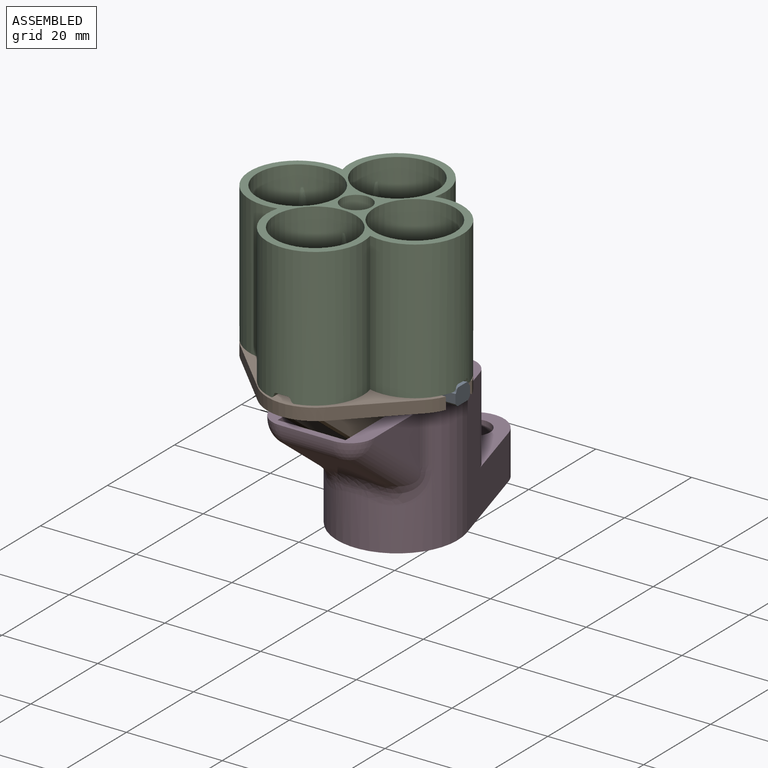
[diagram: assembled view]
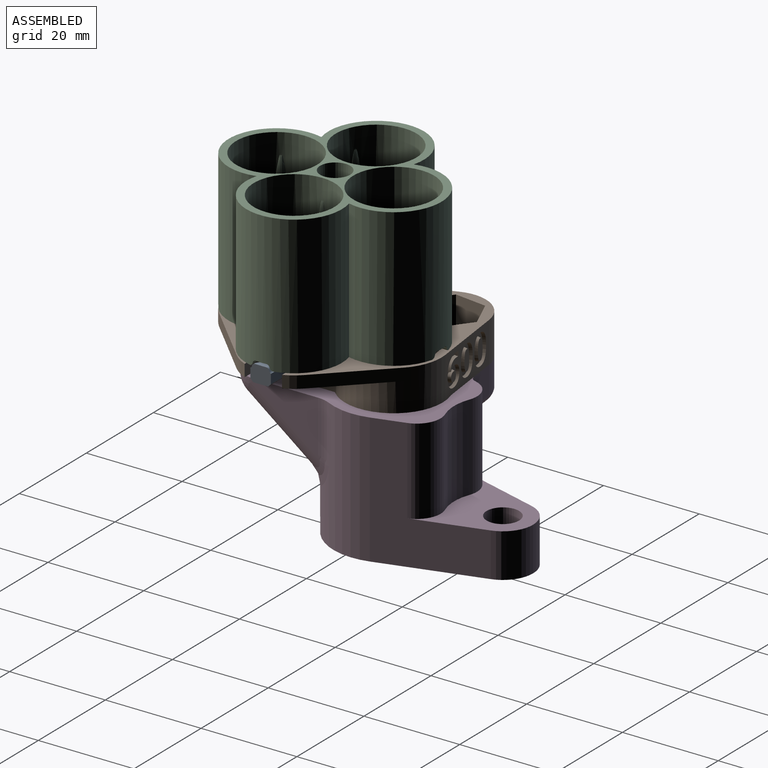
[diagram: assembled view, second angle]
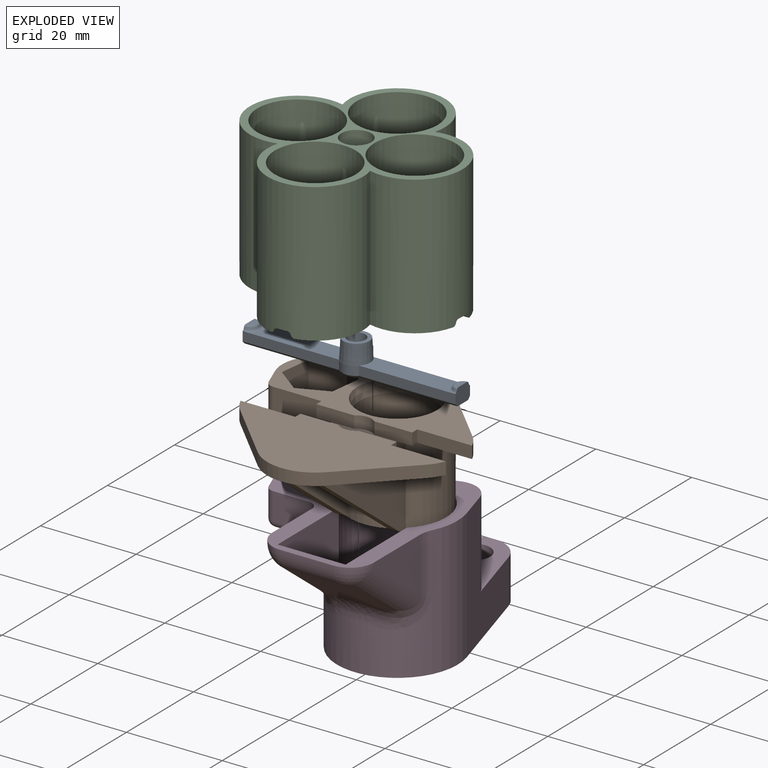
[diagram: exploded view]
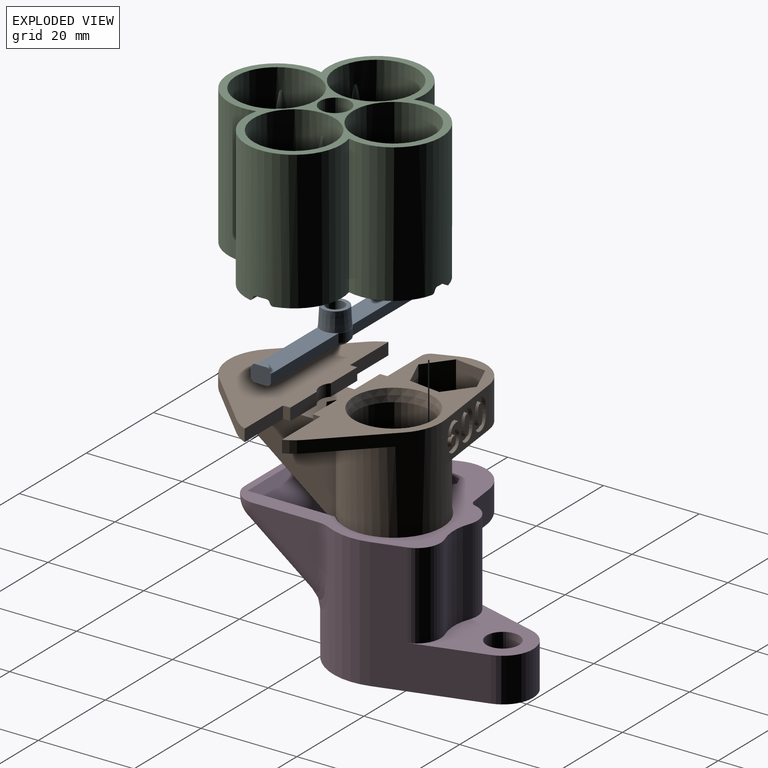
[diagram: exploded view, second angle]
ASSEMBLY  parts=4 mates=3
PART A: 27 faces, bbox 44.5x6x6.5 mm
  f0: plane 42.64x6mm, normal (0,0,1), area 152.1mm2, adj f1,f2,f3,f5,f6,f7,f10,f19
  f1: plane 20.14x1.98mm, normal (0,1,0), area 39.1mm2, adj f0,f2,f8,f19,f24
  f2: cylinder r=3mm len=4.18mm, axis (0,0,-1), area 9mm2, adj f0,f1,f3,f25
  f3: plane 20.14x1.98mm, normal (0,1,0), area 39.1mm2, adj f0,f2,f4,f20,f26
  f4: plane 4.3x3.54mm, normal (-1,0,0), area 14.2mm2, adj f3,f5,f9,f12,f16,f17,f20,f21
  f5: plane 20.14x1.98mm, normal (0,-1,0), area 39.1mm2, adj f0,f4,f6,f20,f21
  f6: cylinder r=3mm len=4.18mm, axis (0,0,-1), area 9mm2, adj f0,f5,f7,f23
  f7: plane 20.14x1.98mm, normal (0,-1,0), area 39.1mm2, adj f0,f6,f8,f19,f22
  f8: plane 4.3x3.54mm, normal (1,0,0), area 14.2mm2, adj f1,f7,f9,f13,f15,f18,f19,f22
  f9: plane 44.47x4.8mm, normal (0,0,-1), area 130.8mm2, adj f4,f8,f14,f21,f22,f23,f24,f25
  f10: cone r=2.95mm half-angle=3deg, axis (0,0,-1), area 71.6mm2, adj f0,f11
  f11: plane 5.48x5.48mm, normal (0,0,1), area 12.3mm2, adj f10,f14
  f12: plane 2.52x1.26mm, normal (0,0,1), area 2.5mm2, adj f4,f17
  f13: plane 2.52x1.26mm, normal (0,0,1), area 2.5mm2, adj f8,f18
  f14: cylinder r=1.9mm len=6.54mm, axis (0,0,1), area 78.1mm2, adj f9,f11
  f15: cone r=1.62mm half-angle=20deg, axis (0,0,-1), area 2mm2, adj f8,f18,f19
  f16: cone r=1.62mm half-angle=20deg, axis (0,0,-1), area 2mm2, adj f4,f17,f20
  f17: torus R=1.26mm, axis (0,0,1), area 3mm2, adj f4,f12,f16
  f18: torus R=1.26mm, axis (0,0,1), area 3mm2, adj f8,f13,f15
  f19: torus R=2.34mm, axis (0,0,1), area 3.8mm2, adj f0,f1,f7,f8,f15
  f20: torus R=2.34mm, axis (0,0,1), area 3.8mm2, adj f0,f3,f4,f5,f16
  f21: plane 20.4x0.6mm, normal (0,-0.71,-0.71), area 17.2mm2, adj f4,f5,f9,f23
  f22: plane 20.4x0.6mm, normal (0,-0.71,-0.71), area 17.2mm2, adj f7,f8,f9,f23
  f23: cone r=3mm half-angle=45deg, axis (0,0,1), area 3.7mm2, adj f6,f9,f21,f22
  f24: plane 20.4x0.6mm, normal (0,0.71,-0.71), area 17.2mm2, adj f1,f8,f9,f25
  f25: cone r=3mm half-angle=45deg, axis (0,0,1), area 3.7mm2, adj f2,f9,f24,f26
  f26: plane 20.4x0.6mm, normal (0,0.71,-0.71), area 17.2mm2, adj f3,f4,f9,f25
PART B: 126 faces, bbox 45.9x44.8x20.3 mm
  f0: plane 16.17x8.81mm, normal (-0.12,0.99,0), area 70.4mm2, adj f8,f16,f22,f33,f68,f69,f70,f71
  f1: plane 17.13x14.58mm, normal (0,0,-1), area 125.5mm2, adj f3,f17,f29,f30,f32,f45,f51
  f2: plane 17.13x14.58mm, normal (0,0,-1), area 125.5mm2, adj f4,f26,f27,f28,f29,f42,f50
  f3: plane 2.54x1.52mm, normal (1,0,0), area 3.9mm2, adj f1,f5,f17,f51
  f4: plane 2.54x1.52mm, normal (-1,0,0), area 3.9mm2, adj f2,f5,f26,f50
  f5: plane 42.88x19.85mm, normal (0,0,1), area 509.4mm2, adj f3,f4,f17,f26,f27,f28,f29,f30
  f6: plane 22.73x17.4mm, normal (1,0,0), area 130.8mm2, adj f9,f11,f13,f14,f47
  f7: plane 20x20mm, normal (0,0,-1), area 127mm2, adj f8,f13,f31,f42,f45,f46,f47
  f8: cylinder r=10mm len=20mm, axis (0,0,-1), area 719.5mm2, adj f0,f7,f10,f16,f21,f33,f42,f45
  f9: plane 8.64x7.03mm, normal (0,0,-1), area 47mm2, adj f6,f13,f14,f43,f55,f56,f57,f58
  f10: plane 16.92x14.58mm, normal (0,0,-1), area 93.9mm2, adj f8,f18,f19,f20,f21,f45,f48
  f11: plane 18.42x13.7mm, normal (0,0,-1), area 161.2mm2, adj f6,f14,f29,f43,f46,f47
  f12: plane 3.14x1.52mm, normal (0,0,-1), area 4.8mm2, adj f24,f25,f42,f49
  f13: cylinder r=10mm len=8.64mm, axis (0,0,-1), area 70.2mm2, adj f6,f7,f9,f43
  f14: plane 9.54x8.64mm, normal (0,-1,0), area 82.4mm2, adj f6,f9,f11,f43
  f15: cylinder r=3.4mm len=6.8mm, axis (0,0,-1), area 53.2mm2, adj f16,f40
  f16: plane 22.82x18.25mm, normal (0,0,-1), area 199.2mm2, adj f0,f8,f15,f22,f23,f24,f42,f125
  f17: plane 11.44x2.54mm, normal (0,1,0), area 29.1mm2, adj f1,f3,f5,f32
  f18: plane 2.54x1.52mm, normal (1,0,0), area 3.9mm2, adj f10,f19,f33,f48
  f19: plane 11.44x2.54mm, normal (0,-1,0), area 29.1mm2, adj f10,f18,f20,f33
  f20: cylinder r=10mm len=3.17mm, axis (0,0,-1), area 9.8mm2, adj f10,f19,f21,f33
  f21: plane 12.23x12.23mm, normal (0.71,0.71,0), area 43.9mm2, adj f8,f10,f20,f33
  f22: cylinder r=8mm len=10.8mm, axis (0,0,-1), area 122.6mm2, adj f0,f16,f23,f33
  f23: plane 8.46x4.18mm, normal (-0.93,-0.36,0), area 37.9mm2, adj f16,f22,f33,f125
  f24: plane 13.21x8.46mm, normal (0,-1,0), area 103.7mm2, adj f12,f16,f25,f33,f42,f125
  f25: plane 2.54x1.52mm, normal (-1,0,0), area 3.9mm2, adj f12,f24,f33,f49
  f26: plane 11.44x2.54mm, normal (0,1,0), area 29.1mm2, adj f2,f4,f5,f27
  f27: cylinder r=10mm len=3.17mm, axis (0,0,-1), area 9.8mm2, adj f2,f5,f26,f28
  f28: plane 12.23x12.23mm, normal (-0.71,-0.71,0), area 43.9mm2, adj f2,f5,f27,f29
  f29: cylinder r=10mm len=14.14mm, axis (0,0,-1), area 39.9mm2, adj f1,f2,f5,f11,f28,f30,f41,f44
  f30: plane 12.23x12.23mm, normal (0.71,-0.71,0), area 43.9mm2, adj f1,f5,f29,f32
  f31: cylinder r=7.8mm len=17.44mm, axis (0,0,-1), area 854.7mm2, adj f7,f124
  f32: cylinder r=10mm len=3.17mm, axis (0,0,-1), area 9.8mm2, adj f1,f5,f17,f30
  f33: plane 45.51x19.85mm, normal (0,0,1), area 320.8mm2, adj f0,f8,f18,f19,f20,f21,f22,f23
  f34: plane 6.23x5.97mm, normal (0.39,-0.92,0), area 40.3mm2, adj f33,f35,f39,f40
  f35: plane 6.7x5.97mm, normal (0.99,-0.13,0), area 40.3mm2, adj f33,f34,f36,f40
  f36: plane 5.97x5.37mm, normal (0.61,0.8,0), area 40.3mm2, adj f33,f35,f37,f40
  f37: plane 6.23x5.97mm, normal (-0.39,0.92,0), area 40.3mm2, adj f33,f36,f38,f40
  f38: plane 6.7x5.97mm, normal (-0.99,0.13,0), area 40.3mm2, adj f33,f37,f39,f40
  f39: plane 5.97x5.37mm, normal (-0.61,-0.8,0), area 40.3mm2, adj f33,f34,f38,f40
  f40: plane 13.4x12.46mm, normal (0,0,1), area 82.2mm2, adj f15,f34,f35,f36,f37,f38,f39
  f41: plane 0.01x0.01mm, normal (0,0,1), area 0mm2, adj f29,f42,f47
  f42: plane 24.48x17.4mm, normal (-1,0,0), area 221.9mm2, adj f2,f7,f8,f12,f16,f24,f41,f47
  f43: plane 22.73x17.4mm, normal (-1,0,0), area 130.8mm2, adj f9,f11,f13,f14,f46
  f44: plane 0.01x0.01mm, normal (0,0,1), area 0mm2, adj f29,f45,f46
  f45: plane 24.48x17.4mm, normal (1,0,0), area 228.1mm2, adj f1,f7,f8,f10,f44,f46,f52
  f46: plane 22.73x17.4mm, normal (0,-0.61,-0.79), area 72.7mm2, adj f7,f11,f43,f44,f45
  f47: plane 22.73x17.4mm, normal (0,-0.61,-0.79), area 72.7mm2, adj f6,f7,f11,f41,f42
  f48: plane 7.9x2.54mm, normal (0,-1,0), area 20.1mm2, adj f10,f18,f33,f52,f53
  f49: plane 7.9x2.54mm, normal (0,-1,0), area 20.1mm2, adj f12,f25,f33,f52,f53
  f50: plane 7.9x2.54mm, normal (0,1,0), area 20.1mm2, adj f2,f4,f5,f52,f54
  f51: plane 7.9x2.54mm, normal (0,1,0), area 20.1mm2, adj f1,f3,f5,f52,f54
  f52: plane 13.72x6.35mm, normal (0,0,1), area 61.9mm2, adj f42,f45,f48,f49,f50,f51,f53,f54
  f53: cylinder r=3.17mm len=4.2mm, axis (0,0,1), area 11.7mm2, adj f33,f48,f49,f52
  f54: cylinder r=3.17mm len=4.2mm, axis (0,0,1), area 11.7mm2, adj f5,f50,f51,f52
  f55: plane 9.54x1.52mm, normal (-0.5,0.87,0), area 16.7mm2, adj f9,f52,f56,f60
  f56: plane 9.54x1.75mm, normal (-1,0,0), area 16.7mm2, adj f9,f52,f55,f57
  f57: plane 9.54x1.52mm, normal (-0.5,-0.87,0), area 16.7mm2, adj f9,f52,f56,f58
  f58: plane 9.54x1.52mm, normal (0.5,-0.87,0), area 16.7mm2, adj f9,f52,f57,f59
  f59: plane 9.54x1.75mm, normal (1,0,0), area 16.7mm2, adj f9,f52,f58,f60
  f60: plane 9.54x1.52mm, normal (0.5,0.87,0), area 16.7mm2, adj f9,f52,f55,f59
  f61: bspline ~1.69x0.75mm, area 1.1mm2, adj f62,f76,f77,f121
  f62: bspline ~1.7x0.75mm, area 1.1mm2, adj f61,f63,f77,f121
  f63: bspline ~0.93x0.83mm, area 0.6mm2, adj f62,f64,f77,f121
  f64: bspline ~0.85x0.83mm, area 0.6mm2, adj f63,f65,f77,f121
  f65: bspline ~1.7x0.8mm, area 1.1mm2, adj f64,f66,f77,f121
  f66: bspline ~1.69x0.79mm, area 1.1mm2, adj f65,f67,f77,f121
  f67: bspline ~0.85x0.84mm, area 0.6mm2, adj f66,f76,f77,f121
  f68: bspline ~2.38x0.74mm, area 1.6mm2, adj f0,f69,f75,f77
  f69: bspline ~2.36x0.8mm, area 1.6mm2, adj f0,f68,f70,f77
  f70: bspline ~1.68x0.9mm, area 1.2mm2, adj f0,f69,f71,f77
  f71: bspline ~1.61x0.87mm, area 1.2mm2, adj f0,f70,f72,f77
  f72: bspline ~2.4x0.83mm, area 1.6mm2, adj f0,f71,f73,f77
  f73: bspline ~2.36x0.72mm, area 1.6mm2, adj f0,f72,f74,f77
  f74: bspline ~1.59x0.94mm, area 1.2mm2, adj f0,f73,f75,f77
  f75: bspline ~1.69x0.87mm, area 1.2mm2, adj f0,f68,f74,f77
  f76: bspline ~0.93x0.83mm, area 0.6mm2, adj f61,f67,f77,f121
  f77: plane 6.37x4.31mm, normal (-0.12,0.99,0), area 11.9mm2, adj f61,f62,f63,f64,f65,f66,f67,f68
  f78: bspline ~1.69x0.75mm, area 1.1mm2, adj f79,f93,f94,f122
  f79: bspline ~1.7x0.75mm, area 1.1mm2, adj f78,f80,f94,f122
  f80: bspline ~0.93x0.83mm, area 0.6mm2, adj f79,f81,f94,f122
  f81: bspline ~0.85x0.83mm, area 0.6mm2, adj f80,f82,f94,f122
  f82: bspline ~1.7x0.8mm, area 1.1mm2, adj f81,f83,f94,f122
  f83: bspline ~1.69x0.79mm, area 1.1mm2, adj f82,f84,f94,f122
  f84: bspline ~0.85x0.84mm, area 0.6mm2, adj f83,f93,f94,f122
  f85: bspline ~2.38x0.79mm, area 1.6mm2, adj f0,f86,f92,f94
  f86: bspline ~2.36x0.8mm, area 1.6mm2, adj f0,f85,f87,f94
  f87: bspline ~1.68x0.9mm, area 1.2mm2, adj f0,f86,f88,f94
  f88: bspline ~1.61x0.87mm, area 1.2mm2, adj f0,f87,f89,f94
  f89: bspline ~2.4x0.83mm, area 1.6mm2, adj f0,f88,f90,f94
  f90: bspline ~2.36x0.83mm, area 1.6mm2, adj f0,f89,f91,f94
  f91: bspline ~1.59x0.89mm, area 1.2mm2, adj f0,f90,f92,f94
  f92: bspline ~1.69x0.87mm, area 1.2mm2, adj f0,f85,f91,f94
  f93: bspline ~0.93x0.83mm, area 0.6mm2, adj f78,f84,f94,f122
  f94: plane 6.37x4.31mm, normal (-0.12,0.99,0), area 11.9mm2, adj f78,f79,f80,f81,f82,f83,f84,f85
  f95: bspline ~0.84x0.79mm, area 0.5mm2, adj f96,f119,f120,f123
  f96: bspline ~0.91x0.83mm, area 0.6mm2, adj f95,f97,f120,f123
  f97: bspline ~0.97x0.76mm, area 0.6mm2, adj f96,f98,f120,f123
  f98: bspline ~0.76x0.75mm, area 0.5mm2, adj f97,f99,f120,f123
  f99: bspline ~0.9x0.83mm, area 0.5mm2, adj f98,f100,f120,f123
  f100: bspline ~0.84x0.78mm, area 0.5mm2, adj f99,f101,f120,f123
  f101: bspline ~0.84x0.8mm, area 0.5mm2, adj f100,f119,f120,f123
  f102: bspline ~2.72x0.81mm, area 1.9mm2, adj f0,f103,f118,f120
  f103: bspline ~1.46x0.8mm, area 1mm2, adj f0,f102,f104,f120
  f104: bspline ~1x0.86mm, area 0.8mm2, adj f0,f103,f105,f120
  f105: bspline ~1.18x0.89mm, area 0.8mm2, adj f0,f104,f106,f120
  f106: bspline ~1.61x0.81mm, area 1.1mm2, adj f0,f105,f107,f120
  f107: bspline ~1.56x0.79mm, area 1.1mm2, adj f0,f106,f108,f120
  f108: bspline ~1.43x0.78mm, area 1mm2, adj f0,f107,f109,f120
  f109: bspline ~1.37x0.89mm, area 0.9mm2, adj f0,f108,f110,f120
  f110: bspline ~1.38x0.92mm, area 1mm2, adj f0,f109,f111,f120
  f111: plane 0.67x0.35mm, normal (-0.03,0.26,-0.97), area 0.1mm2, adj f0,f110,f112,f120
  f112: bspline ~1.4x0.75mm, area 0.8mm2, adj f0,f111,f113,f120
  f113: bspline ~0.9x0.81mm, area 0.6mm2, adj f0,f112,f114,f120
  f114: bspline ~1.26x0.88mm, area 0.8mm2, adj f0,f113,f115,f120
  f115: bspline ~0.84x0.83mm, area 0.5mm2, adj f0,f114,f116,f120
  f116: plane 1.28x0.85mm, normal (0.93,0.38,0), area 0.6mm2, adj f0,f115,f117,f120
  f117: bspline ~0.91x0.84mm, area 0.5mm2, adj f0,f116,f118,f120
  f118: bspline ~2.29x1.03mm, area 1.6mm2, adj f0,f102,f117,f120
  f119: bspline ~0.92x0.8mm, area 0.6mm2, adj f95,f101,f120,f123
  f120: plane 6.32x4.33mm, normal (-0.12,0.99,0), area 11.1mm2, adj f95,f96,f97,f98,f99,f100,f101,f102
  f121: plane 4.53x2mm, normal (-0.12,0.99,0), area 6.1mm2, adj f61,f62,f63,f64,f65,f66,f67,f76
  f122: plane 4.53x2mm, normal (-0.12,0.99,0), area 6.1mm2, adj f78,f79,f80,f81,f82,f83,f84,f93
  f123: plane 2.13x1.86mm, normal (-0.12,0.99,0), area 3mm2, adj f95,f96,f97,f98,f99,f100,f101,f119
  f124: cone r=7.8mm half-angle=11.3deg, axis (0,0,1), area 129mm2, adj f31,f33
  f125: cylinder r=2mm len=8.46mm, axis (0,0,-1), area 20.4mm2, adj f16,f23,f24,f33
PART C: 141 faces, bbox 44.5x44.5x29 mm
  f0: cylinder r=2mm len=9.7mm, axis (0,0,-1), area 121.9mm2, adj f21,f140
  f1: plane 12.23x12.23mm, normal (-0.71,0.71,0), area 74mm2, adj f16,f18,f58,f59,f67,f68,f69,f70
  f2: cylinder r=7.8mm len=15.6mm, axis (0,0,-1), area 483.3mm2, adj f4,f6,f52,f53,f54,f135,f136,f137
  f3: cylinder r=10mm len=29mm, axis (0,0,-1), area 1057.6mm2, adj f4,f16,f17,f19,f52,f53,f54,f135
  f4: plane 43.84x43.84mm, normal (0,0,-1), area 364.1mm2, adj f2,f3,f13,f14,f15,f16,f17,f18
  f5: cylinder r=8.45mm len=19.05mm, axis (0,0,1), area 938.1mm2, adj f6,f19,f31,f32,f33,f34,f35,f39
  f6: plane 16.9x16.85mm, normal (0,0,1), area 31.7mm2, adj f2,f5,f31,f32,f33
  f7: cylinder r=8.45mm len=19.05mm, axis (0,0,1), area 937.1mm2, adj f8,f19,f28,f29,f30,f36,f38,f40
  f8: plane 16.9x16.85mm, normal (0,0,1), area 31.7mm2, adj f7,f15,f28,f29,f30
  f9: cylinder r=8.45mm len=19.05mm, axis (0,0,1), area 937.5mm2, adj f10,f19,f25,f26,f27,f37,f41,f42
  f10: plane 16.9x16.85mm, normal (0,0,1), area 31.7mm2, adj f9,f14,f25,f26,f27
  f11: cylinder r=8.45mm len=19.05mm, axis (0,0,1), area 937.8mm2, adj f12,f19,f22,f23,f24,f43,f44,f45
  f12: plane 16.9x16.85mm, normal (0,0,1), area 31.7mm2, adj f11,f13,f22,f23,f24
  f13: cylinder r=7.8mm len=15.6mm, axis (0,0,-1), area 483.3mm2, adj f4,f12,f49,f50,f51,f123,f124,f125
  f14: cylinder r=7.8mm len=15.6mm, axis (0,0,-1), area 483.3mm2, adj f4,f10,f46,f47,f48,f127,f128,f129
  f15: cylinder r=7.8mm len=15.6mm, axis (0,0,-1), area 483.3mm2, adj f4,f8,f55,f56,f57,f131,f132,f133
  f16: cylinder r=10mm len=29mm, axis (0,0,-1), area 937.9mm2, adj f1,f3,f4,f18,f19,f55,f56,f57
  f17: cylinder r=10mm len=29mm, axis (0,0,-1), area 1057.6mm2, adj f3,f4,f18,f19,f49,f50,f51,f123
  f18: cylinder r=10mm len=29mm, axis (0,0,-1), area 937.9mm2, adj f1,f4,f16,f17,f19,f46,f47,f48
  f19: plane 44.47x44.47mm, normal (0,0,1), area 276.8mm2, adj f3,f5,f7,f9,f11,f16,f17,f18
  f20: cylinder r=3.2mm len=6.4mm, axis (0,0,-1), area 72.4mm2, adj f4,f21
  f21: plane 6.4x6.4mm, normal (0,0,-1), area 19.6mm2, adj f0,f20
  f22: cylinder r=1.4mm len=11mm, axis (0,0,-1), area 22.2mm2, adj f11,f12,f44
  f23: cylinder r=1.4mm len=11mm, axis (0,0,-1), area 22.2mm2, adj f11,f12,f43
  f24: cylinder r=1.4mm len=11mm, axis (0,0,-1), area 22.2mm2, adj f11,f12,f45
  f25: cylinder r=1.4mm len=11mm, axis (0,0,-1), area 22.2mm2, adj f9,f10,f37
  f26: cylinder r=1.4mm len=11mm, axis (0,0,-1), area 22.2mm2, adj f9,f10,f41
  f27: cylinder r=1.4mm len=11mm, axis (0,0,-1), area 22.2mm2, adj f9,f10,f42
  f28: cylinder r=1.4mm len=11mm, axis (0,0,-1), area 22.2mm2, adj f7,f8,f38
  f29: cylinder r=1.4mm len=11mm, axis (0,0,-1), area 22.2mm2, adj f7,f8,f36
  f30: cylinder r=1.4mm len=11mm, axis (0,0,-1), area 22.2mm2, adj f7,f8,f40
  f31: cylinder r=1.4mm len=11mm, axis (0,0,-1), area 22.2mm2, adj f5,f6,f39
  f32: cylinder r=1.4mm len=11mm, axis (0,0,-1), area 22.2mm2, adj f5,f6,f35
  f33: cylinder r=1.4mm len=11mm, axis (0,0,-1), area 22.2mm2, adj f5,f6,f34
  f34: cone r=0.9mm half-angle=5.7deg, axis (0,0,-1), area 5.1mm2, adj f5,f33
  f35: cone r=0.9mm half-angle=5.7deg, axis (0,0,-1), area 5.1mm2, adj f5,f32
  f36: cone r=0.9mm half-angle=5.7deg, axis (0,0,-1), area 5.1mm2, adj f7,f29
  f37: cone r=0.9mm half-angle=5.7deg, axis (0,0,-1), area 5.1mm2, adj f9,f25
  f38: cone r=0.9mm half-angle=5.7deg, axis (0,0,-1), area 5.1mm2, adj f7,f28
  f39: cone r=0.9mm half-angle=5.7deg, axis (0,0,-1), area 5.1mm2, adj f5,f31
  f40: cone r=0.9mm half-angle=5.7deg, axis (0,0,-1), area 5.1mm2, adj f7,f30
  f41: cone r=0.9mm half-angle=5.7deg, axis (0,0,-1), area 5.1mm2, adj f9,f26
  f42: cone r=0.9mm half-angle=5.7deg, axis (0,0,-1), area 5.1mm2, adj f9,f27
  f43: cone r=0.9mm half-angle=5.7deg, axis (0,0,-1), area 5.1mm2, adj f11,f23
  f44: cone r=0.9mm half-angle=5.7deg, axis (0,0,-1), area 5.1mm2, adj f11,f22
  f45: cone r=0.9mm half-angle=5.7deg, axis (0,0,-1), area 5.1mm2, adj f11,f24
  f46: plane 2.27x2.15mm, normal (0,0,-1), area 4.7mm2, adj f14,f18,f129,f130
  f47: plane 2.27x0.28mm, normal (-0.94,0,-0.34), area 0.7mm2, adj f14,f18,f127,f129
  f48: plane 2.27x0.28mm, normal (0.94,0,-0.34), area 0.7mm2, adj f14,f18,f128,f130
  f49: plane 2.27x2.15mm, normal (0,0,-1), area 4.7mm2, adj f13,f17,f125,f126
  f50: plane 2.27x0.28mm, normal (0,0.94,-0.34), area 0.7mm2, adj f13,f17,f123,f125
  f51: plane 2.27x0.28mm, normal (0,-0.94,-0.34), area 0.7mm2, adj f13,f17,f124,f126
  f52: plane 2.27x2.15mm, normal (0,0,-1), area 4.7mm2, adj f2,f3,f137,f138
  f53: plane 2.27x0.28mm, normal (-0.94,0,-0.34), area 0.7mm2, adj f2,f3,f136,f138
  f54: plane 2.27x0.28mm, normal (0.94,0,-0.34), area 0.7mm2, adj f2,f3,f135,f137
  f55: plane 2.27x2.15mm, normal (0,0,-1), area 4.7mm2, adj f15,f16,f133,f134
  f56: plane 2.27x0.28mm, normal (0,-0.94,-0.34), area 0.7mm2, adj f15,f16,f132,f134
  f57: plane 2.27x0.28mm, normal (0,0.94,-0.34), area 0.7mm2, adj f15,f16,f131,f133
  f58: plane 12.23x12.23mm, normal (-0.5,0.5,0.71), area 35.5mm2, adj f1,f16,f18
  f59: plane 12.23x12.23mm, normal (-0.5,0.5,-0.71), area 35.5mm2, adj f1,f16,f18
  f60: extruded ~1.62x0.49mm, area 0.8mm2, adj f61,f75,f76,f120
  f61: extruded ~1.63x0.49mm, area 0.8mm2, adj f60,f62,f76,f120
  f62: extruded ~0.82x0.82mm, area 0.4mm2, adj f61,f63,f76,f120
  f63: extruded ~0.82x0.82mm, area 0.4mm2, adj f62,f64,f76,f120
  f64: extruded ~1.63x0.5mm, area 0.8mm2, adj f63,f65,f76,f120
  f65: extruded ~1.61x0.5mm, area 0.8mm2, adj f64,f66,f76,f120
  f66: extruded ~0.82x0.82mm, area 0.4mm2, adj f65,f75,f76,f120
  f67: extruded ~2.38x0.73mm, area 1.2mm2, adj f1,f68,f74,f76
  f68: extruded ~2.36x0.74mm, area 1.2mm2, adj f1,f67,f69,f76
  f69: extruded ~1.49x1.49mm, area 0.9mm2, adj f1,f68,f70,f76
  f70: extruded ~1.5x1.5mm, area 0.9mm2, adj f1,f69,f71,f76
  f71: extruded ~2.4x0.73mm, area 1.2mm2, adj f1,f70,f72,f76
  f72: extruded ~2.36x0.74mm, area 1.2mm2, adj f1,f71,f73,f76
  f73: extruded ~1.49x1.49mm, area 0.9mm2, adj f1,f72,f74,f76
  f74: extruded ~1.5x1.5mm, area 0.9mm2, adj f1,f67,f73,f76
  f75: extruded ~0.82x0.82mm, area 0.4mm2, adj f60,f66,f76,f120
  f76: plane 6.33x3.04mm, normal (-0.71,0.71,0), area 16.5mm2, adj f60,f61,f62,f63,f64,f65,f66,f67
  f77: extruded ~1.62x0.49mm, area 0.8mm2, adj f78,f92,f93,f121
  f78: extruded ~1.63x0.49mm, area 0.8mm2, adj f77,f79,f93,f121
  f79: extruded ~0.82x0.82mm, area 0.4mm2, adj f78,f80,f93,f121
  f80: extruded ~0.82x0.82mm, area 0.4mm2, adj f79,f81,f93,f121
  f81: extruded ~1.63x0.5mm, area 0.8mm2, adj f80,f82,f93,f121
  f82: extruded ~1.61x0.5mm, area 0.8mm2, adj f81,f83,f93,f121
  f83: extruded ~0.82x0.82mm, area 0.4mm2, adj f82,f92,f93,f121
  f84: extruded ~2.38x0.73mm, area 1.2mm2, adj f1,f85,f91,f93
  f85: extruded ~2.36x0.74mm, area 1.2mm2, adj f1,f84,f86,f93
  f86: extruded ~1.49x1.49mm, area 0.9mm2, adj f1,f85,f87,f93
  f87: extruded ~1.5x1.5mm, area 0.9mm2, adj f1,f86,f88,f93
  f88: extruded ~2.4x0.73mm, area 1.2mm2, adj f1,f87,f89,f93
  f89: extruded ~2.36x0.74mm, area 1.2mm2, adj f1,f88,f90,f93
  f90: extruded ~1.49x1.49mm, area 0.9mm2, adj f1,f89,f91,f93
  f91: extruded ~1.5x1.5mm, area 0.9mm2, adj f1,f84,f90,f93
  f92: extruded ~0.82x0.82mm, area 0.4mm2, adj f77,f83,f93,f121
  f93: plane 6.33x3.04mm, normal (-0.71,0.71,0), area 16.5mm2, adj f77,f78,f79,f80,f81,f82,f83,f84
  f94: extruded ~0.81x0.81mm, area 0.4mm2, adj f95,f118,f119,f122
  f95: extruded ~0.83x0.83mm, area 0.4mm2, adj f94,f96,f119,f122
  f96: extruded ~0.85x0.54mm, area 0.5mm2, adj f95,f97,f119,f122
  f97: extruded ~0.6x0.55mm, area 0.3mm2, adj f96,f98,f119,f122
  f98: extruded ~0.83x0.83mm, area 0.4mm2, adj f97,f99,f119,f122
  f99: extruded ~0.8x0.8mm, area 0.4mm2, adj f98,f100,f119,f122
  f100: extruded ~0.71x0.5mm, area 0.4mm2, adj f99,f118,f119,f122
  f101: extruded ~2.72x0.9mm, area 1.4mm2, adj f1,f102,f117,f119
  f102: extruded ~1.46x0.55mm, area 0.7mm2, adj f1,f101,f103,f119
  f103: extruded ~0.92x0.91mm, area 0.6mm2, adj f1,f102,f104,f119
  f104: extruded ~1.19x1.19mm, area 0.6mm2, adj f1,f103,f105,f119
  f105: extruded ~1.44x1.44mm, area 0.8mm2, adj f1,f104,f106,f119
  f106: extruded ~1.56x0.75mm, area 0.8mm2, adj f1,f105,f107,f119
  f107: extruded ~1.43x0.68mm, area 0.8mm2, adj f1,f106,f108,f119
  f108: extruded ~1.27x1.27mm, area 0.7mm2, adj f1,f107,f109,f119
  f109: extruded ~1.3x1.3mm, area 0.8mm2, adj f1,f108,f110,f119
  f110: plane 0.39x0.39mm, normal (0,0,-1), area 0mm2, adj f1,f109,f111,f119
  f111: extruded ~1.12x0.53mm, area 0.6mm2, adj f1,f110,f112,f119
  f112: extruded ~0.8x0.8mm, area 0.4mm2, adj f1,f111,f113,f119
  f113: extruded ~1.13x1.13mm, area 0.6mm2, adj f1,f112,f114,f119
  f114: extruded ~0.88x0.88mm, area 0.4mm2, adj f1,f113,f115,f119
  f115: plane 1.04x0.35mm, normal (0.71,0.71,0), area 0.5mm2, adj f1,f114,f116,f119
  f116: extruded ~0.94x0.94mm, area 0.4mm2, adj f1,f115,f117,f119
  f117: extruded ~1.99x1.99mm, area 1.3mm2, adj f1,f101,f116,f119
  f118: extruded ~0.8x0.51mm, area 0.4mm2, adj f94,f100,f119,f122
  f119: plane 6.3x3.07mm, normal (-0.71,0.71,0), area 16.1mm2, adj f94,f95,f96,f97,f98,f99,f100,f101
  f120: plane 4.23x1.21mm, normal (-0.71,0.71,0), area 6.1mm2, adj f60,f61,f62,f63,f64,f65,f66,f75
  f121: plane 4.23x1.21mm, normal (-0.71,0.71,0), area 6.1mm2, adj f77,f78,f79,f80,f81,f82,f83,f92
  f122: plane 2.04x1.27mm, normal (-0.71,0.71,0), area 3mm2, adj f94,f95,f96,f97,f98,f99,f100,f118
  f123: cylinder r=0.7mm len=2.44mm, axis (-1,0,0), area 1.9mm2, adj f4,f13,f17,f50
  f124: cylinder r=0.7mm len=2.44mm, axis (-1,0,0), area 1.9mm2, adj f4,f13,f17,f51
  f125: cylinder r=0.7mm len=2.34mm, axis (-1,0,0), area 1.9mm2, adj f13,f17,f49,f50
  f126: cylinder r=0.7mm len=2.34mm, axis (-1,0,0), area 1.9mm2, adj f13,f17,f49,f51
  f127: cylinder r=0.7mm len=2.44mm, axis (0,-1,0), area 1.9mm2, adj f4,f14,f18,f47
  f128: cylinder r=0.7mm len=2.44mm, axis (0,-1,0), area 1.9mm2, adj f4,f14,f18,f48
  f129: cylinder r=0.7mm len=2.34mm, axis (0,-1,0), area 1.9mm2, adj f14,f18,f46,f47
  f130: cylinder r=0.7mm len=2.34mm, axis (0,-1,0), area 1.9mm2, adj f14,f18,f46,f48
  f131: cylinder r=0.7mm len=2.44mm, axis (1,0,0), area 1.9mm2, adj f4,f15,f16,f57
  f132: cylinder r=0.7mm len=2.44mm, axis (1,0,0), area 1.9mm2, adj f4,f15,f16,f56
  f133: cylinder r=0.7mm len=2.34mm, axis (1,0,0), area 1.9mm2, adj f15,f16,f55,f57
  f134: cylinder r=0.7mm len=2.34mm, axis (1,0,0), area 1.9mm2, adj f15,f16,f55,f56
  f135: cylinder r=0.7mm len=2.44mm, axis (0,1,0), area 1.9mm2, adj f2,f3,f4,f54
  f136: cylinder r=0.7mm len=2.44mm, axis (0,1,0), area 1.9mm2, adj f2,f3,f4,f53
  f137: cylinder r=0.7mm len=2.34mm, axis (0,1,0), area 1.9mm2, adj f2,f3,f52,f54
  f138: cylinder r=0.7mm len=2.34mm, axis (0,1,0), area 1.9mm2, adj f2,f3,f52,f53
  f139: cylinder r=3.15mm len=15.7mm, axis (0,0,1), area 310.7mm2, adj f19,f140
  f140: plane 6.3x6.3mm, normal (0,0,1), area 18.6mm2, adj f0,f139
PART D: 60 faces, bbox 37.3x56.2x27.2 mm
  f0: plane 40.7x36.67mm, normal (0,0,1), area 483.5mm2, adj f3,f5,f6,f7,f8,f9,f10,f15
  f1: cylinder r=6.32mm len=12.14mm, axis (0,0,1), area 149.8mm2, adj f13,f26,f27,f56
  f2: cylinder r=3.4mm len=9.18mm, axis (0,0,1), area 196.1mm2, adj f13,f56
  f3: plane 13.7x10.9mm, normal (1,0,0), area 77.4mm2, adj f0,f29,f30,f45
  f4: plane 11.2x11.04mm, normal (0,-0.61,-0.79), area 147.5mm2, adj f30,f31,f35,f48
  f5: cylinder r=12.6mm len=27.18mm, axis (0,0,-1), area 712.2mm2, adj f0,f13,f26,f27,f44,f45,f46,f47
  f6: plane 13.7x10.9mm, normal (-1,0,0), area 63.2mm2, adj f0,f31,f32,f36,f44,f55
  f7: plane 18.27x12.68mm, normal (-1,0,0), area 127.3mm2, adj f0,f9,f10,f11,f14
  f8: plane 18.27x12.68mm, normal (1,0,0), area 127.3mm2, adj f0,f9,f10,f11,f14
  f9: cylinder r=10.2mm len=27.18mm, axis (0,0,-1), area 1397.9mm2, adj f0,f7,f8,f12,f13,f14
  f10: plane 15.19x14.2mm, normal (0,0.61,0.79), area 271.6mm2, adj f0,f7,f8,f11
  f11: plane 14.2x1.06mm, normal (0,1,0), area 15mm2, adj f7,f8,f10,f14
  f12: plane 14.5x9.6mm, normal (0,1,0), area 139.2mm2, adj f9,f13,f14
  f13: plane 41.72x25.2mm, normal (0,0,-1), area 404.4mm2, adj f1,f2,f5,f9,f12,f26,f27
  f14: plane 14.2x3.08mm, normal (0,0,1), area 23.4mm2, adj f7,f8,f9,f11,f12
  f15: plane 7.47x5.7mm, normal (0,-1,0), area 42.6mm2, adj f0,f36,f37,f39
  f16: plane 13.81x10.19mm, normal (0,0,-1), area 93.6mm2, adj f20,f21,f22,f23,f24,f25,f38,f39
  f17: plane 5.7x5.48mm, normal (-0.12,0.99,0), area 31.5mm2, adj f0,f18,f43,f49
  f18: cylinder r=8mm len=10.8mm, axis (0,0,1), area 82.6mm2, adj f0,f17,f19,f42
  f19: plane 5.7x4.18mm, normal (-0.93,-0.36,0), area 25.5mm2, adj f0,f18,f37,f41
  f20: plane 7.2x2.12mm, normal (-0.99,0.13,0), area 15.4mm2, adj f0,f16,f21,f25
  f21: plane 7.2x1.7mm, normal (-0.61,-0.8,0), area 15.4mm2, adj f0,f16,f20,f22
  f22: plane 7.2x1.97mm, normal (0.39,-0.92,0), area 15.4mm2, adj f0,f16,f21,f23
  f23: plane 7.2x2.12mm, normal (0.99,-0.13,0), area 15.4mm2, adj f0,f16,f22,f24
  f24: plane 7.2x1.7mm, normal (0.61,0.8,0), area 15.4mm2, adj f0,f16,f23,f25
  f25: plane 7.2x1.97mm, normal (-0.39,0.92,0), area 15.4mm2, adj f0,f16,f20,f24
  f26: plane 27.18x21.07mm, normal (-0.96,0.28,0), area 268.9mm2, adj f0,f1,f5,f13,f49,f50,f51,f56
  f27: plane 27.18x21.07mm, normal (0.96,0.28,0), area 323.1mm2, adj f0,f1,f5,f13,f56,f59
  f28: plane 11.2x0.41mm, normal (0,-1,0), area 4.6mm2, adj f0,f29,f32,f35
  f29: cylinder r=5mm len=5mm, axis (0,0,-1), area 3.2mm2, adj f0,f3,f28,f33
  f30: cylinder r=5mm len=17.82mm, axis (0,0.79,-0.61), area 133.1mm2, adj f3,f4,f33,f47
  f31: cylinder r=5mm len=17.82mm, axis (0,-0.79,0.61), area 133.1mm2, adj f4,f6,f34,f46
  f32: cylinder r=5mm len=5mm, axis (0,0,-1), area 3.2mm2, adj f0,f6,f28,f34
  f33: sphere r=5mm, area 22.9mm2, adj f29,f30,f35
  f34: sphere r=5mm, area 22.9mm2, adj f31,f32,f35
  f35: cylinder r=5mm len=11.2mm, axis (-1,0,0), area 51.4mm2, adj f4,f28,f33,f34
  f36: cylinder r=2mm len=5.7mm, axis (0,0,-1), area 17.9mm2, adj f0,f6,f15,f38
  f37: cylinder r=2mm len=5.7mm, axis (0,0,1), area 13.7mm2, adj f0,f15,f19,f40
  f38: torus R=3.5mm, axis (0,0,1), area 2.7mm2, adj f16,f36,f39,f54,f55
  f39: cylinder r=1.5mm len=7.47mm, axis (-1,0,0), area 17.6mm2, adj f15,f16,f38,f40
  f40: torus R=0.5mm, axis (0,0,1), area 4.1mm2, adj f16,f37,f39,f41
  f41: cylinder r=1.5mm len=4.72mm, axis (-0.36,0.93,0), area 10.6mm2, adj f16,f19,f40,f42
  f42: torus R=6.5mm, axis (0,0,1), area 31.8mm2, adj f16,f18,f41,f43
  f43: cylinder r=1.5mm len=5.67mm, axis (0.99,0.12,0), area 11.9mm2, adj f16,f17,f42,f50
  f44: cylinder r=6mm len=2.71mm, axis (0,0,-1), area 6.4mm2, adj f5,f6,f46,f53,f54
  f45: cylinder r=6mm len=10.9mm, axis (0,0,-1), area 30.6mm2, adj f0,f3,f5,f47
  f46: bspline ~8.51x8.1mm, area 44mm2, adj f5,f31,f44,f48
  f47: bspline ~8.51x8.1mm, area 44mm2, adj f5,f30,f45,f48
  f48: bspline ~11.2x5.43mm, area 53.1mm2, adj f4,f5,f46,f47
  f49: cylinder r=1.5mm len=5.7mm, axis (0,0,-1), area 10mm2, adj f0,f17,f26,f50
  f50: bspline ~3.68x3mm, area 7.1mm2, adj f26,f43,f49,f51
  f51: cylinder r=1.5mm len=3.5mm, axis (-0.28,-0.96,0), area 7.6mm2, adj f16,f26,f50,f52
  f52: torus R=14.1mm, axis (0,0,1), area 23.1mm2, adj f5,f16,f51,f53
  f53: torus R=4.5mm, axis (0,0,1), area 1.5mm2, adj f16,f44,f52,f54
  f54: bspline ~3.46x2.07mm, area 3.4mm2, adj f38,f44,f53,f55
  f55: bspline ~3.02x2.88mm, area 3.8mm2, adj f6,f38,f54
  f56: plane 20.49x19.13mm, normal (0,0,1), area 183.2mm2, adj f1,f2,f26,f27,f57,f58,f59
  f57: cylinder r=10.2mm len=18mm, axis (0,0,1), area 134.4mm2, adj f0,f56,f58,f59
  f58: cylinder r=5mm len=18mm, axis (0,0,1), area 149.2mm2, adj f0,f26,f56,f57
  f59: cylinder r=5mm len=18mm, axis (0,0,1), area 149.2mm2, adj f0,f27,f56,f57
PLACE A at identity fixed
PLACE B at identity
PLACE C rot(axis=(0,0,-1),0deg) t=(0,0,0.4)mm
PLACE D t=(0,0,-1.2)mm
MATE fastened D.f18 <-> B.f15  axis (0,0,1) through (-16.07,12.23,-5.92)mm
MATE revolute A.f10 <-> C.f0  axis (0,0,1) through (0,0,6.54)mm
MATE fastened A.f14 <-> B.f53  axis (0,0,-1) through (0,0,0)mm
